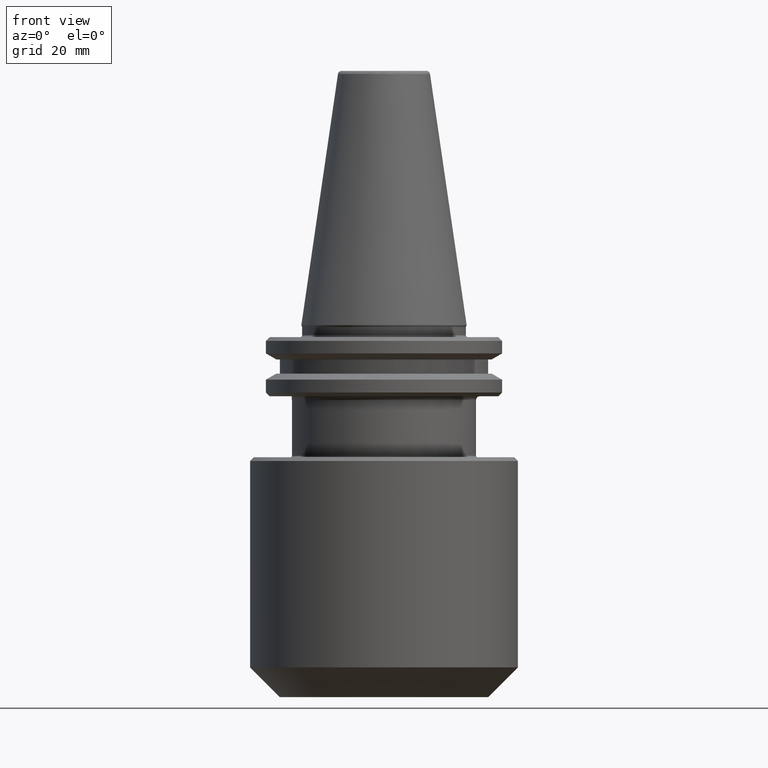
[diagram: clean part render]
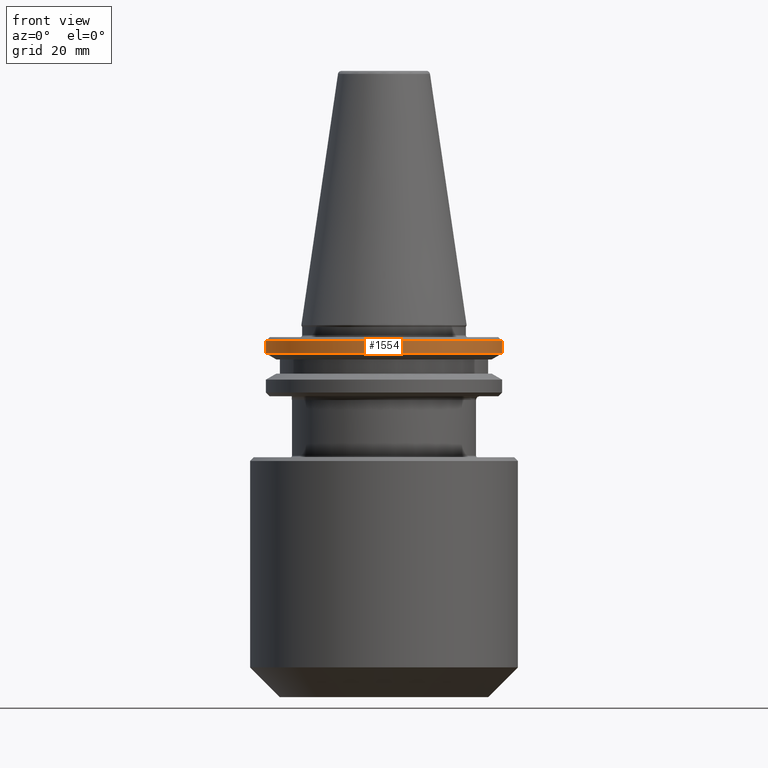
[diagram: same view with one face highlighted and labeled with its STEP entity id]
A machine part, front view. The second image highlights one B-rep face of the part: STEP entity #1554.
In plain terms, the highlighted cylindrical surface (partial cylindrical patch) has radius 31.75 mm, axis along (0, 0, 1).
Its self-contained STEP definition (entity closure, byte-faithful):
#78 = DIRECTION ( 'NONE',  ( 0.0000000000000000000, 0.0000000000000000000, 1.000000000000000000 ) ) ;
#83 = CARTESIAN_POINT ( 'NONE',  ( -31.75000000000000000, 3.888253587292846500E-015, 113.5216080541959500 ) ) ;
#146 = EDGE_CURVE ( 'NONE', #169, #428, #1199, .T. ) ;
#149 = EDGE_CURVE ( 'NONE', #1841, #958, #1847, .T. ) ;
#169 = VERTEX_POINT ( 'NONE', #1641 ) ;
#195 = CYLINDRICAL_SURFACE ( 'NONE', #830, 31.75000000000000000 ) ;
#372 = ORIENTED_EDGE ( 'NONE', *, *, #146, .T. ) ;
#428 = VERTEX_POINT ( 'NONE', #1592 ) ;
#462 = CIRCLE ( 'NONE', #1730, 31.74999999999994300 ) ;
#584 = EDGE_CURVE ( 'NONE', #933, #169, #462, .T. ) ;
#807 = CARTESIAN_POINT ( 'NONE',  ( 31.75000000000000000, 0.0000000000000000000, -7.578163357943284800 ) ) ;
#830 = AXIS2_PLACEMENT_3D ( 'NONE', #1846, #1892, #1964 ) ;
#859 = LINE ( 'NONE', #83, #1753 ) ;
#871 = ORIENTED_EDGE ( 'NONE', *, *, #1660, .T. ) ;
#876 = EDGE_LOOP ( 'NONE', ( #898, #1688, #871, #1825, #372 ) ) ;
#898 = ORIENTED_EDGE ( 'NONE', *, *, #1436, .F. ) ;
#903 = AXIS2_PLACEMENT_3D ( 'NONE', #1495, #1489, #1488 ) ;
#909 = CARTESIAN_POINT ( 'NONE',  ( -31.75000000000000000, 3.888253587292846500E-015, -7.578163357943284800 ) ) ;
#927 = CARTESIAN_POINT ( 'NONE',  ( 31.74999999999994300, 0.0000000000000000000, -4.200000000000036600 ) ) ;
#933 = VERTEX_POINT ( 'NONE', #927 ) ;
#958 = VERTEX_POINT ( 'NONE', #909 ) ;
#1079 = VECTOR ( 'NONE', #1180, 1000.000000000000000 ) ;
#1173 = DIRECTION ( 'NONE',  ( -1.000000000000000000, 0.0000000000000000000, 0.0000000000000000000 ) ) ;
#1174 = DIRECTION ( 'NONE',  ( -0.0000000000000000000, -0.0000000000000000000, -1.000000000000000000 ) ) ;
#1178 = CARTESIAN_POINT ( 'NONE',  ( 0.0000000000000000000, 0.0000000000000000000, -4.200000000000036600 ) ) ;
#1180 = DIRECTION ( 'NONE',  ( 0.0000000000000000000, 0.0000000000000000000, 1.000000000000000000 ) ) ;
#1199 = CIRCLE ( 'NONE', #903, 31.74999999999994300 ) ;
#1381 = CARTESIAN_POINT ( 'NONE',  ( 31.75000000000000000, 0.0000000000000000000, 113.5216080541959500 ) ) ;
#1436 = EDGE_CURVE ( 'NONE', #958, #428, #859, .T. ) ;
#1488 = DIRECTION ( 'NONE',  ( -1.000000000000000000, 0.0000000000000000000, 0.0000000000000000000 ) ) ;
#1489 = DIRECTION ( 'NONE',  ( -0.0000000000000000000, -0.0000000000000000000, -1.000000000000000000 ) ) ;
#1495 = CARTESIAN_POINT ( 'NONE',  ( 0.0000000000000000000, 0.0000000000000000000, -4.200000000000036600 ) ) ;
#1551 = DIRECTION ( 'NONE',  ( 1.000000000000000000, 0.0000000000000000000, -5.463695987328526400E-017 ) ) ;
#1552 = DIRECTION ( 'NONE',  ( -0.0000000000000000000, -0.0000000000000000000, -1.000000000000000000 ) ) ;
#1554 = ADVANCED_FACE ( 'NONE', ( #1583 ), #195, .T. ) ;
#1555 = CARTESIAN_POINT ( 'NONE',  ( 0.0000000000000000000, 0.0000000000000000000, -7.578163357943284800 ) ) ;
#1583 = FACE_OUTER_BOUND ( 'NONE', #876, .T. ) ;
#1592 = CARTESIAN_POINT ( 'NONE',  ( -31.74999999999994300, 3.888253587292843300E-015, -4.200000000000036600 ) ) ;
#1641 = CARTESIAN_POINT ( 'NONE',  ( 3.888253587292850400E-015, -31.75000000000003600, -4.200000000000036600 ) ) ;
#1660 = EDGE_CURVE ( 'NONE', #1841, #933, #1698, .T. ) ;
#1688 = ORIENTED_EDGE ( 'NONE', *, *, #149, .F. ) ;
#1698 = LINE ( 'NONE', #1381, #1079 ) ;
#1730 = AXIS2_PLACEMENT_3D ( 'NONE', #1178, #1174, #1173 ) ;
#1753 = VECTOR ( 'NONE', #78, 1000.000000000000000 ) ;
#1825 = ORIENTED_EDGE ( 'NONE', *, *, #584, .T. ) ;
#1841 = VERTEX_POINT ( 'NONE', #807 ) ;
#1842 = AXIS2_PLACEMENT_3D ( 'NONE', #1555, #1552, #1551 ) ;
#1846 = CARTESIAN_POINT ( 'NONE',  ( 0.0000000000000000000, 0.0000000000000000000, 113.5216080541959500 ) ) ;
#1847 = CIRCLE ( 'NONE', #1842, 31.75000000000000000 ) ;
#1892 = DIRECTION ( 'NONE',  ( 0.0000000000000000000, 0.0000000000000000000, 1.000000000000000000 ) ) ;
#1964 = DIRECTION ( 'NONE',  ( 1.000000000000000000, 0.0000000000000000000, 0.0000000000000000000 ) ) ;